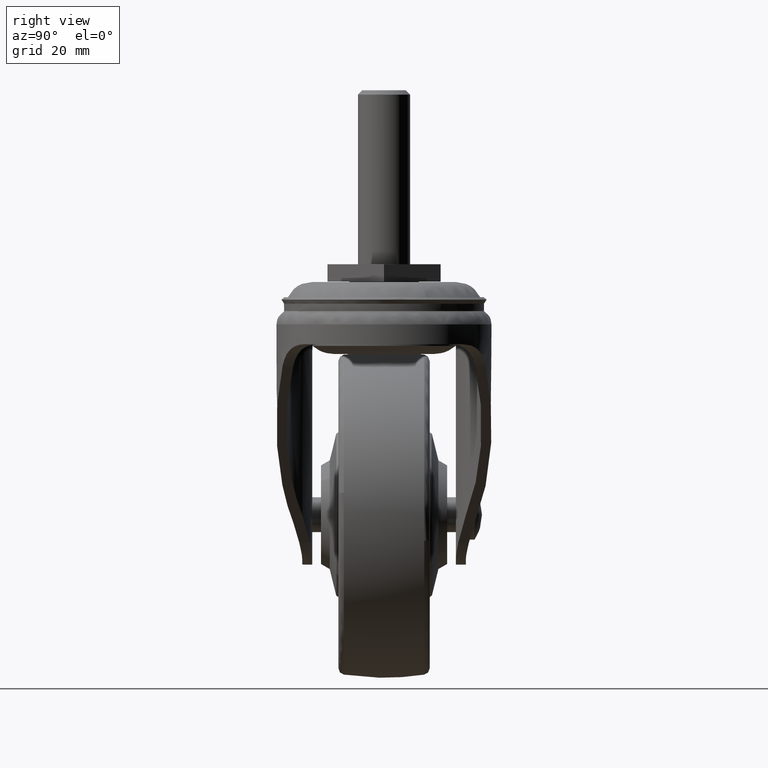
[diagram: clean part render]
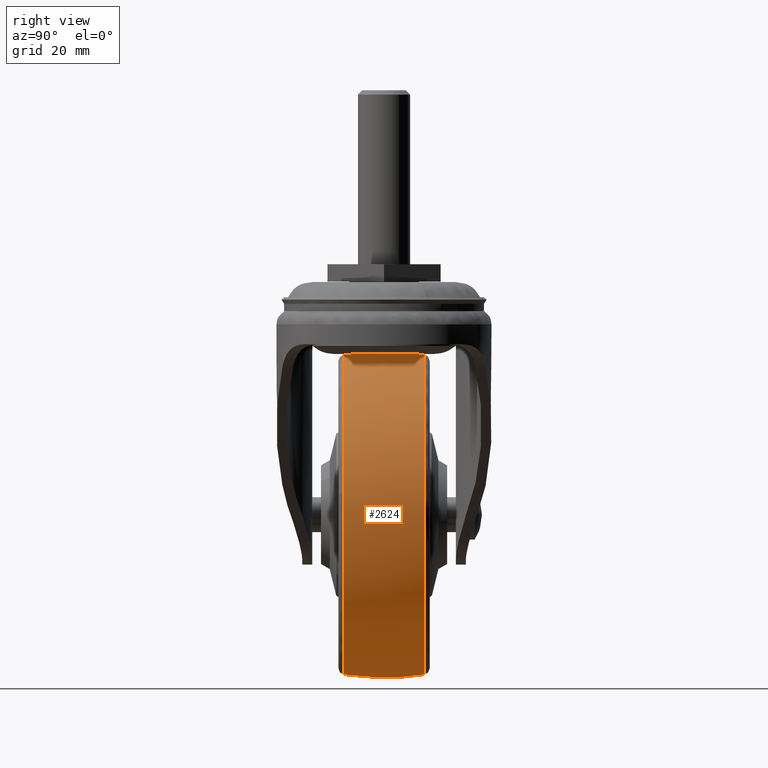
[diagram: same view with one face highlighted and labeled with its STEP entity id]
A machine part, right view. The second image highlights one B-rep face of the part: STEP entity #2624.
In plain terms, the highlighted face is a freeform B-spline surface patch.
Its self-contained STEP definition (entity closure, byte-faithful):
#2391=CARTESIAN_POINT('',(-25.0,-9.230763351864182,-86.285654018669007));
#2392=VERTEX_POINT('',#2391);
#2409=CARTESIAN_POINT('',(11.434806249781079,-9.230763420441935,-44.431253459715897));
#2410=VERTEX_POINT('',#2409);
#2411=CARTESIAN_POINT('',(-25.0,-9.230763351864182,-86.285654018669007));
#2412=CARTESIAN_POINT('',(-23.362826642736682,-9.230763353192712,-86.285699459875204));
#2413=CARTESIAN_POINT('',(-19.679169163076150,-9.230763356411597,-86.039406872341900));
#2414=CARTESIAN_POINT('',(-13.983612059243590,-9.230763362203597,-84.784115499713948));
#2415=CARTESIAN_POINT('',(-8.885964314611725,-9.230763368277987,-82.705196232734650));
#2416=CARTESIAN_POINT('',(-4.564981913079209,-9.230763374130369,-80.188379552347627));
#2417=CARTESIAN_POINT('',(-0.433034337547575,-9.230763380375842,-77.085110477261338));
#2418=CARTESIAN_POINT('',(2.999875682384272,-9.230763386463643,-73.542607420576857));
#2419=CARTESIAN_POINT('',(5.907316417008673,-9.230763392517854,-69.578300183742556));
#2420=CARTESIAN_POINT('',(7.760607481096546,-9.230763396997016,-66.386239972196151));
#2421=CARTESIAN_POINT('',(9.528226713776778,-9.230763402128568,-62.419626977891369));
#2422=CARTESIAN_POINT('',(10.837287583737149,-9.230763407056584,-58.272107694657791));
#2423=CARTESIAN_POINT('',(11.568054675340379,-9.230763411566278,-54.069924092127017));
#2424=CARTESIAN_POINT('',(11.883086862529501,-9.230763416088056,-49.492958423530382));
#2425=CARTESIAN_POINT('',(11.716967697060360,-9.230763418781461,-46.458189836390140));
#2426=CARTESIAN_POINT('',(11.434806249781079,-9.230763420441935,-44.431253459715897));
#2427=B_SPLINE_CURVE_WITH_KNOTS('',3,(#2411,#2412,#2413,#2414,#2415,#2416,#2417,#2418,#2419,#2420,#2421,#2422,#2423,#2424,#2425,#2426),.UNSPECIFIED.,.F.,.U.,(4,1,1,1,1,1,1,1,1,1,1,1,1,4),(0.000000047621405,4.911534404600488,11.050981175165459,17.436007203449520,21.365242000181009,26.031221011899522,32.907346866176283,36.099850220369930,40.765837053344811,43.958357131801293,49.115494490869857,53.781470874736563,56.728425361655553,62.867831224664599),.UNSPECIFIED.);
#2428=EDGE_CURVE('',#2392,#2410,#2427,.T.);
#2477=CARTESIAN_POINT('',(-25.0,-9.230763351852319,-12.714274538763419));
#2478=VERTEX_POINT('',#2477);
#2479=CARTESIAN_POINT('',(11.434806249781079,-9.230763420441935,-44.431253459715897));
#2480=CARTESIAN_POINT('',(11.226850620801899,-9.230763418825191,-42.936078438008487));
#2481=CARTESIAN_POINT('',(10.626464007022090,-9.230763415418021,-39.971386718263879));
#2482=CARTESIAN_POINT('',(9.252179159868467,-9.230763410116733,-35.864135831426744));
#2483=CARTESIAN_POINT('',(7.272067832562048,-9.230763404050270,-31.631843163938111));
#2484=CARTESIAN_POINT('',(4.909160047847330,-9.230763398054849,-27.915371121411301));
#2485=CARTESIAN_POINT('',(1.664208099933742,-9.230763390930422,-24.001474558874889));
#2486=CARTESIAN_POINT('',(-1.972424220692242,-9.230763383895956,-20.633440169913150));
#2487=CARTESIAN_POINT('',(-6.014292139441179,-9.230763377011334,-17.892234334302259));
#2488=CARTESIAN_POINT('',(-9.795138719122353,-9.230763371134675,-15.931341414246891));
#2489=CARTESIAN_POINT('',(-13.312423231800681,-9.230763366077264,-14.547129221827550));
#2490=CARTESIAN_POINT('',(-18.412943001111650,-9.230763359306028,-13.143066337772741));
#2491=CARTESIAN_POINT('',(-22.323877990305210,-9.230763354717642,-12.713730852573599));
#2492=CARTESIAN_POINT('',(-25.0,-9.230763351852319,-12.714274538763419));
#2493=B_SPLINE_CURVE_WITH_KNOTS('',3,(#2479,#2480,#2481,#2482,#2483,#2484,#2485,#2486,#2487,#2488,#2489,#2490,#2491,#2492),.UNSPECIFIED.,.F.,.U.,(4,1,1,1,1,1,1,1,1,1,1,4),(0.000000053057711,4.528701375077148,9.057467296629426,12.968649566090001,18.526662046458860,22.232006190347541,28.201624106288769,33.347934806220707,36.847424235353159,40.964471342124263,44.669802565693018,52.698006034467902),.UNSPECIFIED.);
#2494=EDGE_CURVE('',#2410,#2478,#2493,.T.);
#2518=CARTESIAN_POINT('',(-26.024135168112753,-10.163918936312216,-86.132821066260178));
#2519=CARTESIAN_POINT('',(-26.048377663444683,-5.118949990986023,-86.999964278717130));
#2520=CARTESIAN_POINT('',(-26.048377663444693,5.694446E-015,-86.999964278717130));
#2521=CARTESIAN_POINT('',(-26.048377663444693,5.118941571733992,-86.999964278717130));
#2522=CARTESIAN_POINT('',(-26.024135247280803,10.163902461083875,-86.132823898065595));
#2523=CARTESIAN_POINT('',(-25.515049737465041,-10.163918936312216,-86.132821066260163));
#2524=CARTESIAN_POINT('',(-25.527241576242751,-5.118949990986023,-86.999964278717115));
#2525=CARTESIAN_POINT('',(-25.527241576242751,5.694446E-015,-86.999964278717130));
#2526=CARTESIAN_POINT('',(-25.527241576242751,5.118941571733992,-86.999964278717130));
#2527=CARTESIAN_POINT('',(-25.515049777279589,10.163902461083875,-86.132823898065595));
#2528=CARTESIAN_POINT('',(11.632856787543023,-10.163918936312212,-86.132821066260178));
#2529=CARTESIAN_POINT('',(12.499999999999991,-5.118949990986022,-86.999964278717144));
#2530=CARTESIAN_POINT('',(12.499999999999993,5.694446E-015,-86.999964278717158));
#2531=CARTESIAN_POINT('',(12.499999999999995,5.118941571733994,-86.999964278717158));
#2532=CARTESIAN_POINT('',(11.632859619348467,10.163902461083874,-86.132823898065610));
#2533=CARTESIAN_POINT('',(11.632856787543025,-10.163918936312214,-49.499964278717130));
#2534=CARTESIAN_POINT('',(12.499999999999996,-5.118949990986023,-49.499964278717137));
#2535=CARTESIAN_POINT('',(12.500000000000000,5.694446E-015,-49.499964278717137));
#2536=CARTESIAN_POINT('',(12.499999999999998,5.118941571733994,-49.499964278717137));
#2537=CARTESIAN_POINT('',(11.632859619348471,10.163902461083875,-49.499964278717144));
#2538=CARTESIAN_POINT('',(11.632856787543025,-10.163918936312212,-12.867107491174110));
#2539=CARTESIAN_POINT('',(12.499999999999991,-5.118949990986022,-11.999964278717142));
#2540=CARTESIAN_POINT('',(12.499999999999993,5.694446E-015,-11.999964278717139));
#2541=CARTESIAN_POINT('',(12.499999999999995,5.118941571733994,-11.999964278717144));
#2542=CARTESIAN_POINT('',(11.632859619348467,10.163902461083874,-12.867104659368668));
#2543=CARTESIAN_POINT('',(-25.515049737465041,-10.163918936312216,-12.867107491174110));
#2544=CARTESIAN_POINT('',(-25.527241576242744,-5.118949990986024,-11.999964278717133));
#2545=CARTESIAN_POINT('',(-25.527241576242744,5.694446E-015,-11.999964278717142));
#2546=CARTESIAN_POINT('',(-25.527241576242751,5.118941571733993,-11.999964278717135));
#2547=CARTESIAN_POINT('',(-25.515049777279593,10.163902461083875,-12.867104659368669));
#2548=CARTESIAN_POINT('',(-26.024135168112746,-10.163918936312214,-12.867107491174108));
#2549=CARTESIAN_POINT('',(-26.048377663444676,-5.118949990986023,-11.999964278717133));
#2550=CARTESIAN_POINT('',(-26.048377663444683,5.694446E-015,-11.999964278717135));
#2551=CARTESIAN_POINT('',(-26.048377663444679,5.118941571733993,-11.999964278717137));
#2552=CARTESIAN_POINT('',(-26.024135247280785,10.163902461083875,-12.867104659368666));
#2560=(BOUNDED_SURFACE()B_SPLINE_SURFACE(2,2,((#2518,#2523,#2528,#2533,#2538,#2543,#2548),(#2519,#2524,#2529,#2534,#2539,#2544,#2549),(#2520,#2525,#2530,#2535,#2540,#2545,#2550),(#2521,#2526,#2531,#2536,#2541,#2546,#2551),(#2522,#2527,#2532,#2537,#2542,#2547,#2552)),.UNSPECIFIED.,.F.,.F.,.U.)B_SPLINE_SURFACE_WITH_KNOTS((3,2,3),(3,1,2,1,3),(0.0,10.428930635673550,20.857844554520611),(0.0,1.242640687119291,63.374675043083549,125.506709399047810,126.749350086167100),.UNSPECIFIED.)GEOMETRIC_REPRESENTATION_ITEM()RATIONAL_B_SPLINE_SURFACE(((0.967945754012498,0.962341319101140,0.676515138621883,0.956736884189782,0.676515138621883,0.962341319101140,0.967945754012498),(0.986006812477827,0.980297803496921,0.689138345470697,0.974588794516015,0.689138345470697,0.980297803496921,0.986006812477827),(1.011715728752538,1.005857864376269,0.707106781186548,1.0,0.707106781186548,1.005857864376269,1.011715728752538),(0.986006853687373,0.980297844467862,0.689138374272808,0.974588835248351,0.689138374272808,0.980297844467862,0.986006853687373),(0.967945811913676,0.962341376667068,0.676515179090084,0.956736941420461,0.676515179090084,0.962341376667068,0.967945811913675)))REPRESENTATION_ITEM('')SURFACE());
#2561=CARTESIAN_POINT('',(-25.0,9.230742634601860,-86.285657244330764));
#2562=VERTEX_POINT('',#2561);
#2563=CARTESIAN_POINT('',(-25.0,-9.230763351864182,-86.285654018669007));
#2564=CARTESIAN_POINT('',(-24.999999999999972,-6.273756534309167,-86.746244877910271));
#2565=CARTESIAN_POINT('',(-25.000000000000071,-0.097700543940877,-87.238805364168613));
#2566=CARTESIAN_POINT('',(-24.999999999999989,6.082969964540927,-86.775998838194539));
#2567=CARTESIAN_POINT('',(-25.0,9.230742634601860,-86.285657244330764));
#2568=B_SPLINE_CURVE_WITH_KNOTS('',3,(#2563,#2564,#2565,#2566,#2567),.UNSPECIFIED.,.F.,.U.,(4,1,4),(1.987228E-009,8.977964132629275,18.535136944959280),.UNSPECIFIED.);
#2569=EDGE_CURVE('',#2392,#2562,#2568,.T.);
#2570=ORIENTED_EDGE('',*,*,#2569,.T.);
#2571=CARTESIAN_POINT('',(11.295924161015449,9.230742941106907,-55.482684766788630));
#2572=VERTEX_POINT('',#2571);
#2573=CARTESIAN_POINT('',(-25.0,9.230742634601860,-86.285657244330764));
#2574=CARTESIAN_POINT('',(-23.045018862977990,9.230742644199218,-86.285743229991184));
#2575=CARTESIAN_POINT('',(-18.932811029073289,9.230742665756269,-85.957193874480993));
#2576=CARTESIAN_POINT('',(-13.486862637971310,9.230742698222239,-84.581698495184114));
#2577=CARTESIAN_POINT('',(-8.937960280176249,9.230742728474194,-82.680517778760347));
#2578=CARTESIAN_POINT('',(-5.518121884724243,9.230742753204885,-80.774105566195800));
#2579=CARTESIAN_POINT('',(-2.082550186019867,9.230742780020721,-78.385737340407090));
#2580=CARTESIAN_POINT('',(1.203588067516712,9.230742808297974,-75.470232408259633));
#2581=CARTESIAN_POINT('',(4.075442199912475,9.230742836228862,-72.150076162715095));
#2582=CARTESIAN_POINT('',(6.612277267029130,9.230742863932585,-68.488931125425268));
#2583=CARTESIAN_POINT('',(8.629195298726653,9.230742889779291,-64.661485448475261));
#2584=CARTESIAN_POINT('',(10.322379109586180,9.230742917073599,-60.104786771170239));
#2585=CARTESIAN_POINT('',(11.021901305186470,9.230742932834399,-57.145583767534518));
#2586=CARTESIAN_POINT('',(11.295924161015449,9.230742941106907,-55.482684766788630));
#2587=B_SPLINE_CURVE_WITH_KNOTS('',3,(#2573,#2574,#2575,#2576,#2577,#2578,#2579,#2580,#2581,#2582,#2583,#2584,#2585,#2586),.UNSPECIFIED.,.F.,.U.,(4,1,1,1,1,1,1,1,1,1,1,4),(0.000000052567785,5.864952464914097,12.336648072001630,16.785948737055580,20.628522188213619,24.066619136716142,29.324819506689789,33.774090722483990,37.212189038250393,42.672688504653692,46.717507489184847,51.773480724665177),.UNSPECIFIED.);
#2588=EDGE_CURVE('',#2562,#2572,#2587,.T.);
#2589=ORIENTED_EDGE('',*,*,#2588,.T.);
#2590=CARTESIAN_POINT('',(-25.0,9.230742634547582,-12.714271313095070));
#2591=VERTEX_POINT('',#2590);
#2592=CARTESIAN_POINT('',(11.295924161015449,9.230742941106907,-55.482684766788630));
#2593=CARTESIAN_POINT('',(11.728716336586270,9.230742931708555,-52.860101347800573));
#2594=CARTESIAN_POINT('',(11.929998877589311,9.230742917123985,-49.189422688092073));
#2595=CARTESIAN_POINT('',(11.445826318745800,9.230742894028911,-44.058037222445073));
#2596=CARTESIAN_POINT('',(10.717798681192299,9.230742876147373,-40.384709259936152));
#2597=CARTESIAN_POINT('',(9.283283658423178,9.230742852246047,-35.866220754351353));
#2598=CARTESIAN_POINT('',(7.474774668292720,9.230742829823486,-32.019987053763558));
#2599=CARTESIAN_POINT('',(5.173080670050162,9.230742806437073,-28.360864739503199));
#2600=CARTESIAN_POINT('',(3.041261938295558,9.230742787364651,-25.592913313491049));
#2601=CARTESIAN_POINT('',(0.183194551709665,9.230742764675517,-22.573185356564959));
#2602=CARTESIAN_POINT('',(-2.879072305043843,9.230742743148463,-20.005724451448611));
#2603=CARTESIAN_POINT('',(-6.351102769817508,9.230742721340020,-17.718246906950409));
#2604=CARTESIAN_POINT('',(-9.669752495217200,9.230742702389057,-15.986460196623870));
#2605=CARTESIAN_POINT('',(-13.383105048795599,9.230742683150847,-14.520705989047380));
#2606=CARTESIAN_POINT('',(-18.438191062272519,9.230742659501022,-13.134626000369980));
#2607=CARTESIAN_POINT('',(-22.425030015180290,9.230742643650951,-12.713909288244761));
#2608=CARTESIAN_POINT('',(-25.0,9.230742634547582,-12.714271313095070));
#2609=B_SPLINE_CURVE_WITH_KNOTS('',3,(#2592,#2593,#2594,#2595,#2596,#2597,#2598,#2599,#2600,#2601,#2602,#2603,#2604,#2605,#2606,#2607,#2608),.UNSPECIFIED.,.F.,.U.,(4,1,1,1,1,1,1,1,1,1,1,1,1,1,4),(0.000000042257710,7.974015631899768,10.964295413017229,15.449714161677120,19.187557693394162,25.168114460652049,28.158383574804699,32.145348613990173,35.633990979048079,40.617768435970120,44.106428297218223,48.093464052506278,51.831306207350373,56.067540041581161,63.792365178020837),.UNSPECIFIED.);
#2610=EDGE_CURVE('',#2572,#2591,#2609,.T.);
#2611=ORIENTED_EDGE('',*,*,#2610,.T.);
#2612=CARTESIAN_POINT('',(-25.0,-9.230763351852319,-12.714274538763419));
#2613=CARTESIAN_POINT('',(-25.000000000000011,-5.892220371566760,-12.194166089081950));
#2614=CARTESIAN_POINT('',(-25.000000000000021,0.293058294882455,-11.761106902123011));
#2615=CARTESIAN_POINT('',(-24.999999999999950,6.464505866316229,-12.283462166074109));
#2616=CARTESIAN_POINT('',(-25.0,9.230742634547582,-12.714271313095070));
#2617=B_SPLINE_CURVE_WITH_KNOTS('',3,(#2612,#2613,#2614,#2615,#2616),.UNSPECIFIED.,.F.,.U.,(4,1,4),(1.985622E-009,10.136394978925180,18.535136944892351),.UNSPECIFIED.);
#2618=EDGE_CURVE('',#2478,#2591,#2617,.T.);
#2619=ORIENTED_EDGE('',*,*,#2618,.F.);
#2620=ORIENTED_EDGE('',*,*,#2494,.F.);
#2621=ORIENTED_EDGE('',*,*,#2428,.F.);
#2622=EDGE_LOOP('',(#2570,#2589,#2611,#2619,#2620,#2621));
#2623=FACE_OUTER_BOUND('',#2622,.T.);
#2624=ADVANCED_FACE('',(#2623),#2560,.T.);